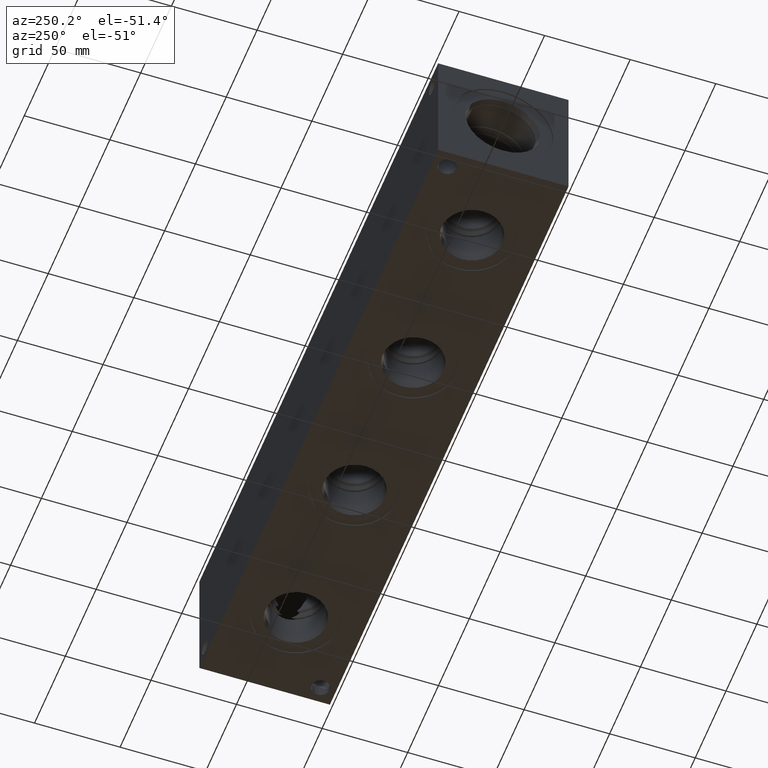
[diagram: clean part render]
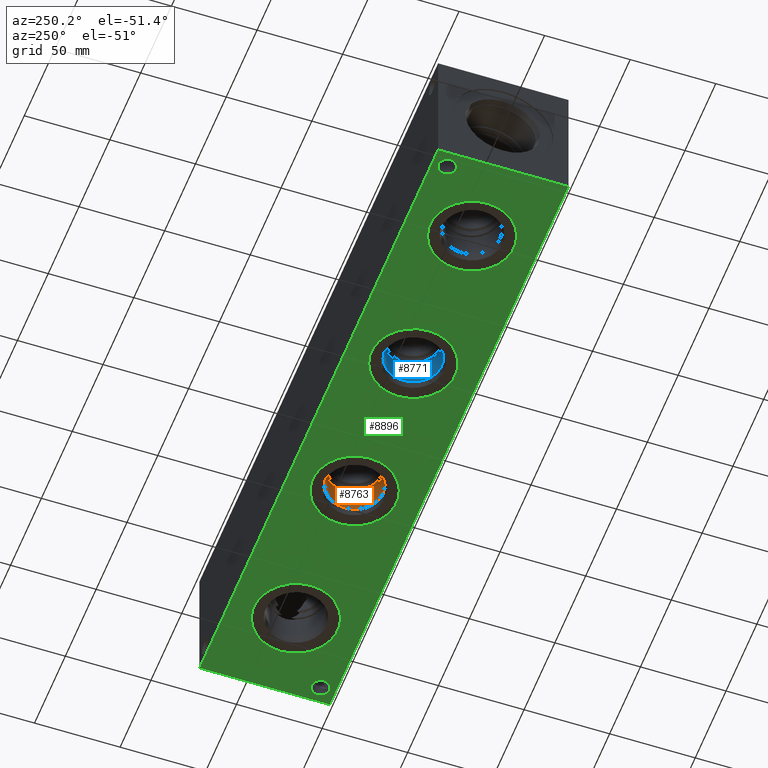
[diagram: same view with three faces highlighted in distinct colors, each labeled with its STEP entity id]
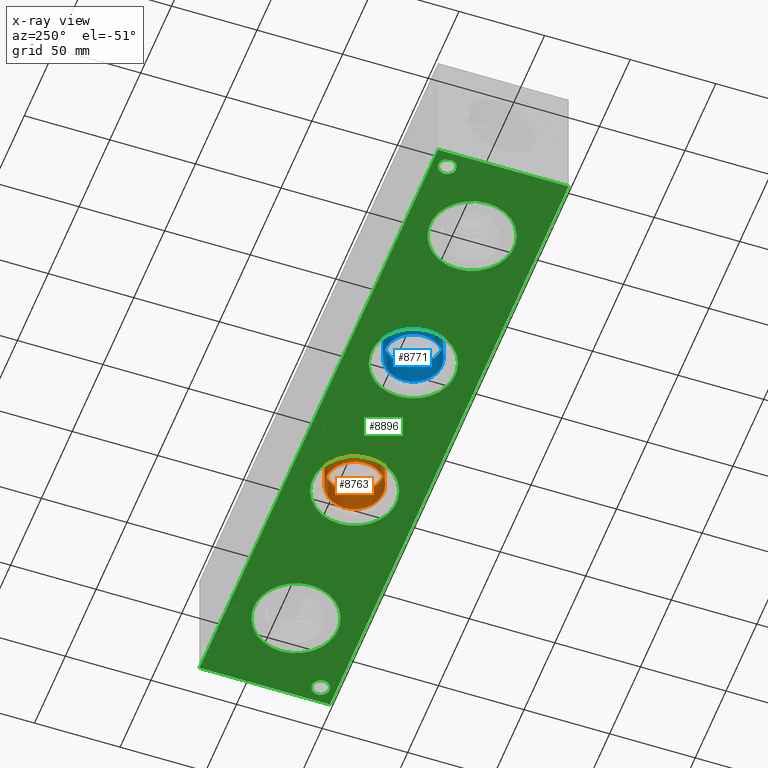
[diagram: x-ray of the same camera — body ghosted, the three highlighted faces saturated]
A machine part, auxiliary view with three faces highlighted in distinct colors.
The next image is the same camera in x-ray (body ghosted, the three faces saturated) — at least one of them is partly hidden behind the body in this view.
Their STEP definitions:

[orange] entity #8763 — the highlighted cylindrical surface (bore or boss wall) has radius 16.6751 mm, axis along (0, 0, -1).
#34=CYLINDRICAL_SURFACE('',#9188,16.6751);
#189=CIRCLE('',#9185,16.6751);
#190=CIRCLE('',#9186,16.6751);
#192=CIRCLE('',#9189,16.6751);
#1071=FACE_OUTER_BOUND('',#1566,.T.);
#1566=EDGE_LOOP('',(#7196,#7197,#7198,#7199,#7200));
#2410=LINE('',#14804,#3201);
#3201=VECTOR('',#10748,16.6751);
#3947=VERTEX_POINT('',#14795);
#3948=VERTEX_POINT('',#14796);
#3950=VERTEX_POINT('',#14802);
#5072=EDGE_CURVE('',#3947,#3948,#189,.T.);
#5073=EDGE_CURVE('',#3948,#3947,#190,.T.);
#5075=EDGE_CURVE('',#3950,#3950,#192,.T.);
#5076=EDGE_CURVE('',#3950,#3948,#2410,.T.);
#7196=ORIENTED_EDGE('',*,*,#5075,.F.);
#7197=ORIENTED_EDGE('',*,*,#5076,.T.);
#7198=ORIENTED_EDGE('',*,*,#5072,.F.);
#7199=ORIENTED_EDGE('',*,*,#5073,.F.);
#7200=ORIENTED_EDGE('',*,*,#5076,.F.);
#8763=ADVANCED_FACE('',(#1071),#34,.F.);
#9185=AXIS2_PLACEMENT_3D('',#14797,#10738,#10739);
#9186=AXIS2_PLACEMENT_3D('',#14798,#10740,#10741);
#9188=AXIS2_PLACEMENT_3D('',#14801,#10744,#10745);
#9189=AXIS2_PLACEMENT_3D('',#14803,#10746,#10747);
#10738=DIRECTION('center_axis',(0.,0.,-1.));
#10739=DIRECTION('ref_axis',(1.,0.,0.));
#10740=DIRECTION('center_axis',(0.,0.,-1.));
#10741=DIRECTION('ref_axis',(1.,0.,0.));
#10744=DIRECTION('center_axis',(0.,0.,-1.));
#10745=DIRECTION('ref_axis',(1.,0.,0.));
#10746=DIRECTION('center_axis',(0.,0.,1.));
#10747=DIRECTION('ref_axis',(1.,0.,0.));
#10748=DIRECTION('',(0.,0.,1.));
#14795=CARTESIAN_POINT('',(257.9751,38.1,19.8374));
#14796=CARTESIAN_POINT('',(224.6249,38.1,19.8374));
#14797=CARTESIAN_POINT('Origin',(241.3,38.1,19.8374));
#14798=CARTESIAN_POINT('Origin',(241.3,38.1,19.8374));
#14801=CARTESIAN_POINT('Origin',(241.3,38.1,9.9187));
#14802=CARTESIAN_POINT('',(224.6249,38.1,4.8236788467706));
#14803=CARTESIAN_POINT('Origin',(241.3,38.1,4.8236788467706));
#14804=CARTESIAN_POINT('',(224.6249,38.1,9.9187));

[blue] entity #8771 — the highlighted cylindrical surface (bore or boss wall) has radius 16.6751 mm, axis along (0, 0, -1).
#38=CYLINDRICAL_SURFACE('',#9206,16.6751);
#199=CIRCLE('',#9203,16.6751);
#200=CIRCLE('',#9204,16.6751);
#202=CIRCLE('',#9207,16.6751);
#1079=FACE_OUTER_BOUND('',#1575,.T.);
#1575=EDGE_LOOP('',(#7234,#7235,#7236,#7237,#7238));
#2416=LINE('',#14868,#3207);
#3207=VECTOR('',#10790,16.6751);
#3960=VERTEX_POINT('',#14859);
#3961=VERTEX_POINT('',#14860);
#3963=VERTEX_POINT('',#14866);
#5093=EDGE_CURVE('',#3960,#3961,#199,.T.);
#5094=EDGE_CURVE('',#3961,#3960,#200,.T.);
#5096=EDGE_CURVE('',#3963,#3963,#202,.T.);
#5097=EDGE_CURVE('',#3963,#3961,#2416,.T.);
#7234=ORIENTED_EDGE('',*,*,#5096,.F.);
#7235=ORIENTED_EDGE('',*,*,#5097,.T.);
#7236=ORIENTED_EDGE('',*,*,#5093,.F.);
#7237=ORIENTED_EDGE('',*,*,#5094,.F.);
#7238=ORIENTED_EDGE('',*,*,#5097,.F.);
#8771=ADVANCED_FACE('',(#1079),#38,.F.);
#9203=AXIS2_PLACEMENT_3D('',#14861,#10780,#10781);
#9204=AXIS2_PLACEMENT_3D('',#14862,#10782,#10783);
#9206=AXIS2_PLACEMENT_3D('',#14865,#10786,#10787);
#9207=AXIS2_PLACEMENT_3D('',#14867,#10788,#10789);
#10780=DIRECTION('center_axis',(0.,0.,-1.));
#10781=DIRECTION('ref_axis',(1.,0.,0.));
#10782=DIRECTION('center_axis',(0.,0.,-1.));
#10783=DIRECTION('ref_axis',(1.,0.,0.));
#10786=DIRECTION('center_axis',(0.,0.,-1.));
#10787=DIRECTION('ref_axis',(1.,0.,0.));
#10788=DIRECTION('center_axis',(0.,0.,1.));
#10789=DIRECTION('ref_axis',(1.,0.,0.));
#10790=DIRECTION('',(0.,0.,1.));
#14859=CARTESIAN_POINT('',(162.7251,38.1,19.8374));
#14860=CARTESIAN_POINT('',(129.3749,38.1,19.8374));
#14861=CARTESIAN_POINT('Origin',(146.05,38.1,19.8374));
#14862=CARTESIAN_POINT('Origin',(146.05,38.1,19.8374));
#14865=CARTESIAN_POINT('Origin',(146.05,38.1,9.9187));
#14866=CARTESIAN_POINT('',(129.3749,38.1,4.8236788467706));
#14867=CARTESIAN_POINT('Origin',(146.05,38.1,4.8236788467706));
#14868=CARTESIAN_POINT('',(129.3749,38.1,9.9187));

[green] entity #8896 — the highlighted planar face has unit normal (0, 0, 1).
#239=CIRCLE('',#9270,24.5618);
#240=CIRCLE('',#9271,24.5618);
#244=CIRCLE('',#9278,24.5618);
#245=CIRCLE('',#9279,24.5618);
#250=CIRCLE('',#9288,24.5618);
#251=CIRCLE('',#9289,24.5618);
#255=CIRCLE('',#9297,24.5618);
#256=CIRCLE('',#9298,24.5618);
#263=CIRCLE('',#9321,5.1562);
#264=CIRCLE('',#9323,5.1562);
#423=FACE_BOUND('',#1721,.T.);
#424=FACE_BOUND('',#1722,.T.);
#425=FACE_BOUND('',#1723,.T.);
#426=FACE_BOUND('',#1724,.T.);
#427=FACE_BOUND('',#1725,.T.);
#428=FACE_BOUND('',#1726,.T.);
#1204=FACE_OUTER_BOUND('',#1720,.T.);
#1720=EDGE_LOOP('',(#7871,#7872,#7873,#7874));
#1721=EDGE_LOOP('',(#7875,#7876));
#1722=EDGE_LOOP('',(#7877,#7878));
#1723=EDGE_LOOP('',(#7879,#7880));
#1724=EDGE_LOOP('',(#7881,#7882));
#1725=EDGE_LOOP('',(#7883));
#1726=EDGE_LOOP('',(#7884));
#2510=LINE('',#15527,#3301);
#2513=LINE('',#15532,#3304);
#2515=LINE('',#15536,#3306);
#2517=LINE('',#15539,#3308);
#3301=VECTOR('',#11468,10.);
#3304=VECTOR('',#11473,10.);
#3306=VECTOR('',#11477,10.);
#3308=VECTOR('',#11481,10.);
#4009=VERTEX_POINT('',#15076);
#4010=VERTEX_POINT('',#15077);
#4014=VERTEX_POINT('',#15091);
#4015=VERTEX_POINT('',#15092);
#4020=VERTEX_POINT('',#15110);
#4021=VERTEX_POINT('',#15111);
#4025=VERTEX_POINT('',#15126);
#4026=VERTEX_POINT('',#15127);
#4037=VERTEX_POINT('',#15170);
#4038=VERTEX_POINT('',#15174);
#4134=VERTEX_POINT('',#15525);
#4135=VERTEX_POINT('',#15526);
#4136=VERTEX_POINT('',#15531);
#4137=VERTEX_POINT('',#15535);
#5168=EDGE_CURVE('',#4009,#4010,#239,.T.);
#5169=EDGE_CURVE('',#4010,#4009,#240,.T.);
#5175=EDGE_CURVE('',#4014,#4015,#244,.T.);
#5176=EDGE_CURVE('',#4015,#4014,#245,.T.);
#5184=EDGE_CURVE('',#4020,#4021,#250,.T.);
#5185=EDGE_CURVE('',#4021,#4020,#251,.T.);
#5191=EDGE_CURVE('',#4025,#4026,#255,.T.);
#5192=EDGE_CURVE('',#4026,#4025,#256,.T.);
#5216=EDGE_CURVE('',#4037,#4037,#263,.T.);
#5218=EDGE_CURVE('',#4038,#4038,#264,.T.);
#5379=EDGE_CURVE('',#4134,#4135,#2510,.T.);
#5382=EDGE_CURVE('',#4136,#4134,#2513,.T.);
#5384=EDGE_CURVE('',#4137,#4136,#2515,.T.);
#5386=EDGE_CURVE('',#4135,#4137,#2517,.T.);
#7871=ORIENTED_EDGE('',*,*,#5386,.F.);
#7872=ORIENTED_EDGE('',*,*,#5379,.F.);
#7873=ORIENTED_EDGE('',*,*,#5382,.F.);
#7874=ORIENTED_EDGE('',*,*,#5384,.F.);
#7875=ORIENTED_EDGE('',*,*,#5168,.T.);
#7876=ORIENTED_EDGE('',*,*,#5169,.T.);
#7877=ORIENTED_EDGE('',*,*,#5175,.T.);
#7878=ORIENTED_EDGE('',*,*,#5176,.T.);
#7879=ORIENTED_EDGE('',*,*,#5184,.T.);
#7880=ORIENTED_EDGE('',*,*,#5185,.T.);
#7881=ORIENTED_EDGE('',*,*,#5191,.T.);
#7882=ORIENTED_EDGE('',*,*,#5192,.T.);
#7883=ORIENTED_EDGE('',*,*,#5216,.T.);
#7884=ORIENTED_EDGE('',*,*,#5218,.T.);
#8133=PLANE('',#9504);
#8896=ADVANCED_FACE('',(#1204,#423,#424,#425,#426,#427,#428),#8133,.F.);
#9270=AXIS2_PLACEMENT_3D('',#15078,#10936,#10937);
#9271=AXIS2_PLACEMENT_3D('',#15079,#10938,#10939);
#9278=AXIS2_PLACEMENT_3D('',#15093,#10954,#10955);
#9279=AXIS2_PLACEMENT_3D('',#15094,#10956,#10957);
#9288=AXIS2_PLACEMENT_3D('',#15112,#10977,#10978);
#9289=AXIS2_PLACEMENT_3D('',#15113,#10979,#10980);
#9297=AXIS2_PLACEMENT_3D('',#15128,#10997,#10998);
#9298=AXIS2_PLACEMENT_3D('',#15129,#10999,#11000);
#9321=AXIS2_PLACEMENT_3D('',#15172,#11054,#11055);
#9323=AXIS2_PLACEMENT_3D('',#15176,#11059,#11060);
#9504=AXIS2_PLACEMENT_3D('',#15541,#11484,#11485);
#10936=DIRECTION('center_axis',(0.,0.,1.));
#10937=DIRECTION('ref_axis',(1.,0.,0.));
#10938=DIRECTION('center_axis',(0.,0.,1.));
#10939=DIRECTION('ref_axis',(1.,0.,0.));
#10954=DIRECTION('center_axis',(0.,0.,1.));
#10955=DIRECTION('ref_axis',(1.,0.,0.));
#10956=DIRECTION('center_axis',(0.,0.,1.));
#10957=DIRECTION('ref_axis',(1.,0.,0.));
#10977=DIRECTION('center_axis',(0.,0.,1.));
#10978=DIRECTION('ref_axis',(1.,0.,0.));
#10979=DIRECTION('center_axis',(0.,0.,1.));
#10980=DIRECTION('ref_axis',(1.,0.,0.));
#10997=DIRECTION('center_axis',(0.,0.,1.));
#10998=DIRECTION('ref_axis',(1.,0.,0.));
#10999=DIRECTION('center_axis',(0.,0.,1.));
#11000=DIRECTION('ref_axis',(1.,0.,0.));
#11054=DIRECTION('center_axis',(0.,0.,1.));
#11055=DIRECTION('ref_axis',(1.,0.,0.));
#11059=DIRECTION('center_axis',(0.,0.,1.));
#11060=DIRECTION('ref_axis',(1.,0.,0.));
#11468=DIRECTION('',(0.,-1.,0.));
#11473=DIRECTION('',(-1.,0.,0.));
#11477=DIRECTION('',(0.,1.,0.));
#11481=DIRECTION('',(1.,0.,0.));
#11484=DIRECTION('center_axis',(0.,0.,1.));
#11485=DIRECTION('ref_axis',(1.,0.,0.));
#15076=CARTESIAN_POINT('',(265.8618,38.1,0.));
#15077=CARTESIAN_POINT('',(216.7382,38.1,0.));
#15078=CARTESIAN_POINT('Origin',(241.3,38.1,0.));
#15079=CARTESIAN_POINT('Origin',(241.3,38.1,0.));
#15091=CARTESIAN_POINT('',(75.3618,38.1,0.));
#15092=CARTESIAN_POINT('',(26.2382,38.1,0.));
#15093=CARTESIAN_POINT('Origin',(50.8,38.1,0.));
#15094=CARTESIAN_POINT('Origin',(50.8,38.1,0.));
#15110=CARTESIAN_POINT('',(170.6118,38.1,0.));
#15111=CARTESIAN_POINT('',(121.4882,38.1,0.));
#15112=CARTESIAN_POINT('Origin',(146.05,38.1,0.));
#15113=CARTESIAN_POINT('Origin',(146.05,38.1,0.));
#15126=CARTESIAN_POINT('',(361.1118,38.1,0.));
#15127=CARTESIAN_POINT('',(311.9882,38.1,0.));
#15128=CARTESIAN_POINT('Origin',(336.55,38.1,0.));
#15129=CARTESIAN_POINT('Origin',(336.55,38.1,0.));
#15170=CARTESIAN_POINT('',(4.3688,67.4624,0.));
#15172=CARTESIAN_POINT('Origin',(9.525,67.4624,0.));
#15174=CARTESIAN_POINT('',(372.6688,8.7376,0.));
#15176=CARTESIAN_POINT('Origin',(377.825,8.7376,0.));
#15525=CARTESIAN_POINT('',(0.,76.2,0.));
#15526=CARTESIAN_POINT('',(0.,0.,0.));
#15527=CARTESIAN_POINT('',(0.,76.2,0.));
#15531=CARTESIAN_POINT('',(387.35,76.2,0.));
#15532=CARTESIAN_POINT('',(387.35,76.2,0.));
#15535=CARTESIAN_POINT('',(387.35,0.,0.));
#15536=CARTESIAN_POINT('',(387.35,0.,0.));
#15539=CARTESIAN_POINT('',(0.,0.,0.));
#15541=CARTESIAN_POINT('Origin',(193.675,38.1,0.));